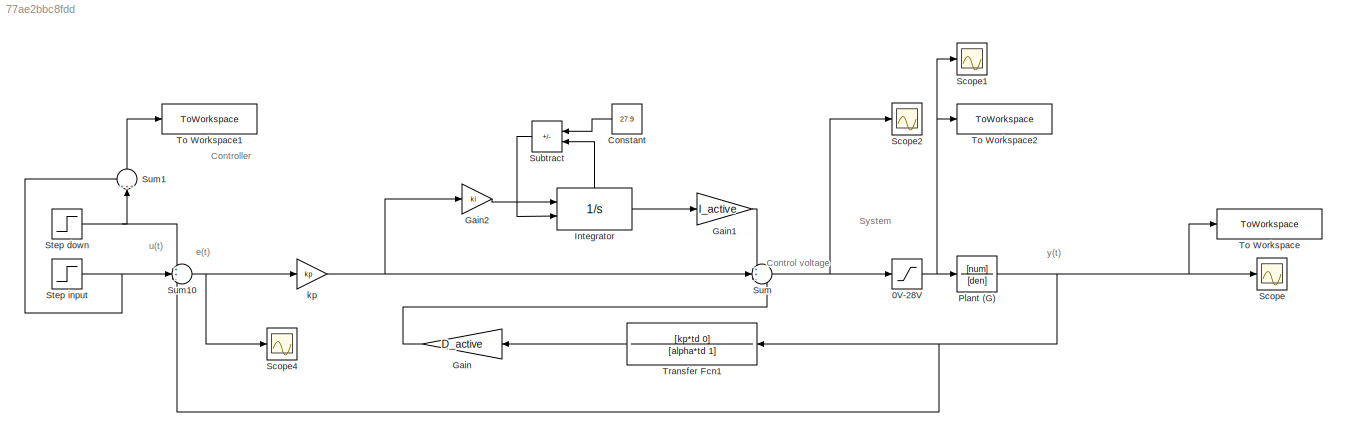
MODEL slx_77ae2bbc8fdd
KIND model
CONFIG AbsTol = auto
CONFIG EnableMultiTasking = off
CONFIG FixedStep = auto
CONFIG MaxStep = auto
CONFIG MinStep = auto
CONFIG RelTol = 1e-3
CONFIG SampleTimeConstraint = Unconstrained
CONFIG SolverName = VariableStepAuto
CONFIG StartTime = 0.0
CONFIG StopTime = 3000
BLOCK [Saturate] 0V-28V
  LowerLimit = 0
  UpperLimit = 28
  ZeroCross = off
BLOCK [Constant] Constant
  NameLocation = top
  Value = 27.9
BLOCK [Gain] Gain
  Gain = D_active
  NameLocation = top
BLOCK [Gain] Gain1
  Gain = I_active
BLOCK [Gain] Gain2
  Gain = ki
BLOCK [Integrator] Integrator
  ExternalReset = either
  LimitOutput = on
  LowerSaturationLimit = 0
  Ports = [2, 1, 0, 0, 1]
  ShowStatePort = on
  UpperSaturationLimit = 28
BLOCK [TransferFcn] Plant (G)
  Denominator = [den]
  Numerator = [num]
BLOCK [Scope] Scope
  Floating = off
  NumInputPorts = 1
  Ports = [1]
  ScopeSpecificationString = Simulink.scopes.TimeScopeBlockCfg('CurrentConfiguration', extmgr.ConfigurationSet(extmgr.Configuration('Core','General UI',true),extmgr.Configuration('Core','Source UI',true),extmgr.Configuration('Sources','WiredSimulink',true,'DataLoggingVariableName','ScopeData2'),extmgr.Configuration('Visuals','Time Domain',true,'SerializedDisplays',{struct('MinYLimReal','2.53547','MaxYLimReal','222.58073','YLa...<+1492ch>
BLOCK [Scope] Scope1
  Floating = off
  NumInputPorts = 1
  Ports = [1]
  ScopeSpecificationString = Simulink.scopes.TimeScopeBlockCfg('CurrentConfiguration', extmgr.ConfigurationSet(extmgr.Configuration('Core','General UI',true),extmgr.Configuration('Core','Source UI',true),extmgr.Configuration('Sources','WiredSimulink',true,'DataLoggingVariableName','ScopeData1'),extmgr.Configuration('Visuals','Time Domain',true,'SerializedDisplays',{struct('MinYLimReal','-3.5','MaxYLimReal','31.5','YLabelReal'...<+1505ch>
BLOCK [Scope] Scope2
  Floating = off
  NumInputPorts = 1
  Ports = [1]
  ScopeSpecificationString = Simulink.scopes.TimeScopeBlockCfg('CurrentConfiguration', extmgr.ConfigurationSet(extmgr.Configuration('Core','General UI',true),extmgr.Configuration('Core','Source UI',true),extmgr.Configuration('Sources','WiredSimulink',true,'DataLoggingVariableName','ScopeData4'),extmgr.Configuration('Visuals','Time Domain',true,'SerializedDisplays',{struct('MinYLimReal','-25.93393','MaxYLimReal','233.40536','Y...<+1532ch>
BLOCK [Scope] Scope4
  Floating = off
  NumInputPorts = 1
  Ports = [1]
  ScopeSpecificationString = Simulink.scopes.TimeScopeBlockCfg('CurrentConfiguration', extmgr.ConfigurationSet(extmgr.Configuration('Core','General UI',true),extmgr.Configuration('Core','Source UI',true),extmgr.Configuration('Sources','WiredSimulink',true),extmgr.Configuration('Visuals','Time Domain',true,'SerializedDisplays',{struct('MinYLimReal','-55.89821','MaxYLimReal','201.16647','YLabelReal','','MinYLimMag','0.00000','M...<+1421ch>
BLOCK [Step] Step down
  After = 5
  SampleTime = 0
  Time = 2000
BLOCK [Step] Step input
  After = set_temp
  SampleTime = 0
BLOCK [Sum] Subtract
  IconShape = rectangular
  Inputs = +-
  NameLocation = top
  Ports = [2, 1]
BLOCK [Sum] Sum
  Inputs = ++-
  Ports = [3, 1]
BLOCK [Sum] Sum1
  Inputs = +++
  NameLocation = right
  Ports = [3, 1]
BLOCK [Sum] Sum10
  Inputs = ++-
  Ports = [3, 1]
BLOCK [ToWorkspace] To Workspace
  FixptAsFi = on
  MaxDataPoints = inf
  Ports = [1]
  SampleTime = -1
  SaveFormat = Timeseries
  VariableName = simout_temp
BLOCK [ToWorkspace] To Workspace1
  FixptAsFi = on
  MaxDataPoints = inf
  Ports = [1]
  SampleTime = -1
  SaveFormat = Timeseries
  VariableName = simout_stepInput
BLOCK [ToWorkspace] To Workspace2
  FixptAsFi = on
  MaxDataPoints = inf
  Ports = [1]
  SampleTime = -1
  SaveFormat = Timeseries
  VariableName = simout_ctrlV
BLOCK [TransferFcn] Transfer Fcn1
  Denominator = [alpha*td 1]
  Numerator = [kp*td 0]
BLOCK [Gain] kp
  Gain = kp
ANNOTATION (root): Control voltage
ANNOTATION (root): Controller
ANNOTATION (root): System
ANNOTATION (root): e(t)
ANNOTATION (root): u(t)
ANNOTATION (root): y(t)
NET 0V-28V:1 -> Plant (G):1, Scope1:1, To Workspace2:1
LINE Constant:1 -> Subtract:1
LINE Gain1:1 -> Sum:1
LINE Gain2:1 -> Integrator:1
LINE Gain:1 -> Sum:3
LINE Integrator:1 -> Gain1:1
LINE Integrator:state -> Subtract:2
NET Plant (G):1 -> Scope:1, Sum10:3, To Workspace:1, Transfer Fcn1:1
NET Step down:1 -> Sum10:1, Sum1:2
NET Step input:1 -> Sum10:2, Sum1:1
LINE Subtract:1 -> Integrator:2
NET Sum10:1 -> Scope4:1, kp:1
LINE Sum1:1 -> To Workspace1:1
NET Sum:1 -> 0V-28V:1, Scope2:1
LINE Transfer Fcn1:1 -> Gain:1
NET kp:1 -> Gain2:1, Sum:2
note: NET lines group one-source signal fan-out (src -> all destinations, sorted); 1:1 wires keep LINE
